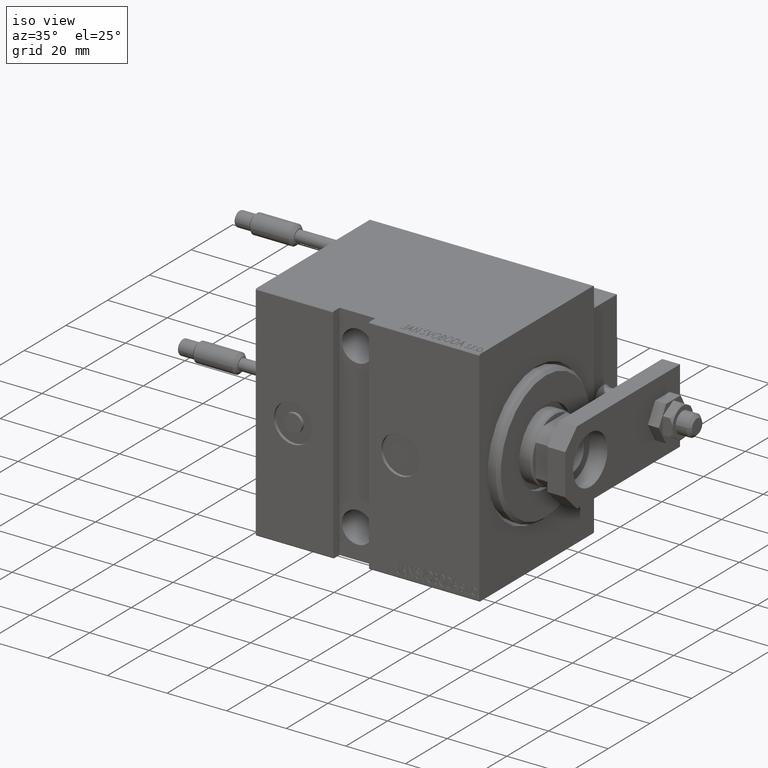
[diagram: clean part render]
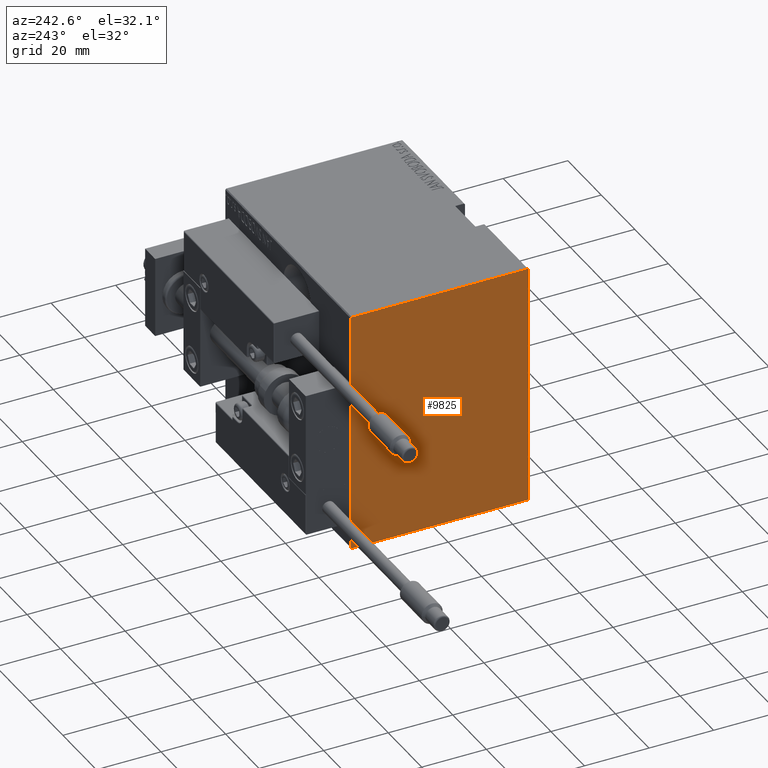
[diagram: tour spotlight — one face highlighted and labeled with its STEP entity id]
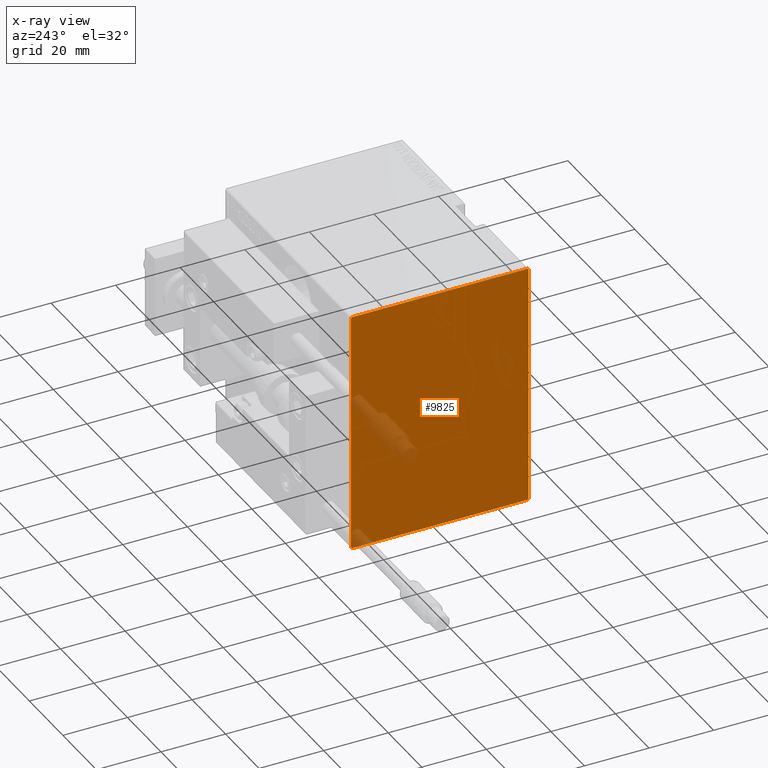
[diagram: x-ray of the same camera — body ghosted, this tour face saturated]
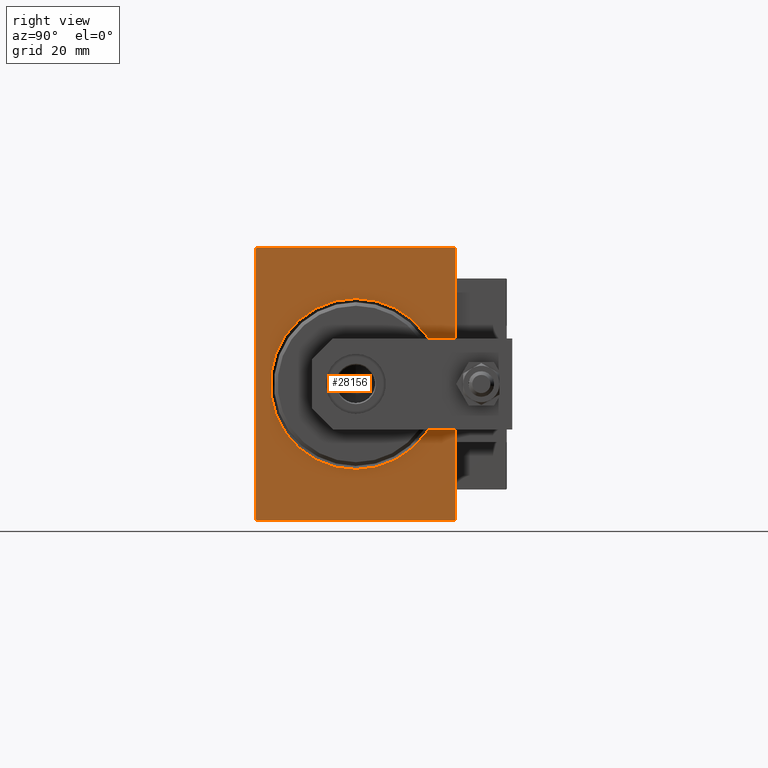
[diagram: tour spotlight — one face highlighted and labeled with its STEP entity id]
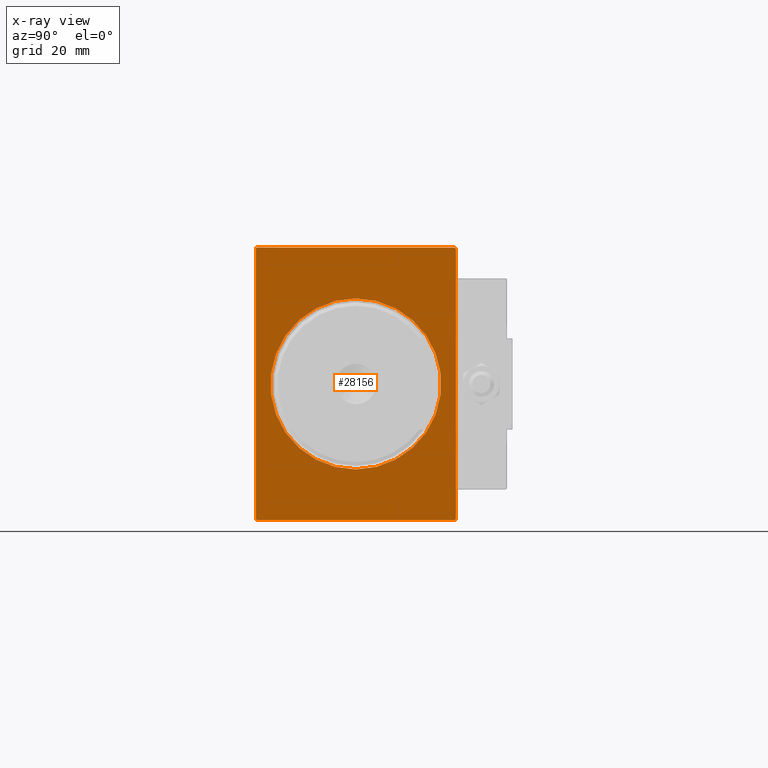
[diagram: x-ray of the same camera — body ghosted, this tour face saturated]
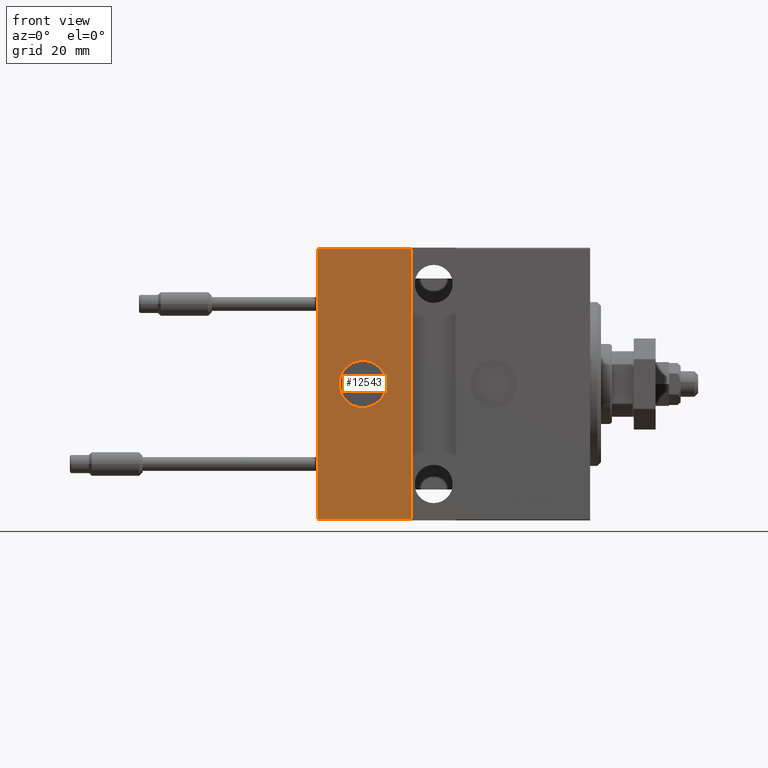
[diagram: tour spotlight — one face highlighted and labeled with its STEP entity id]
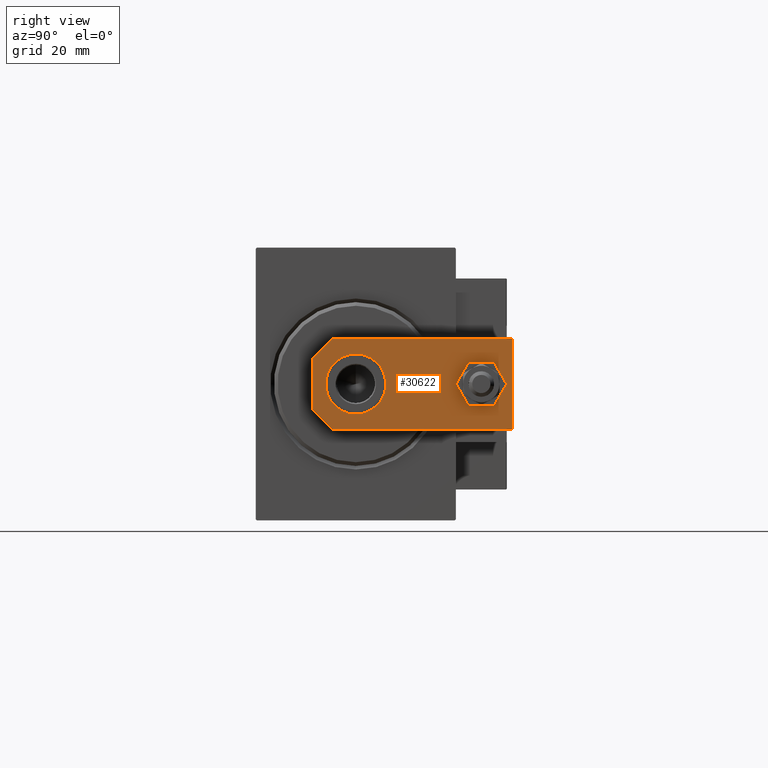
[diagram: tour spotlight — one face highlighted and labeled with its STEP entity id]
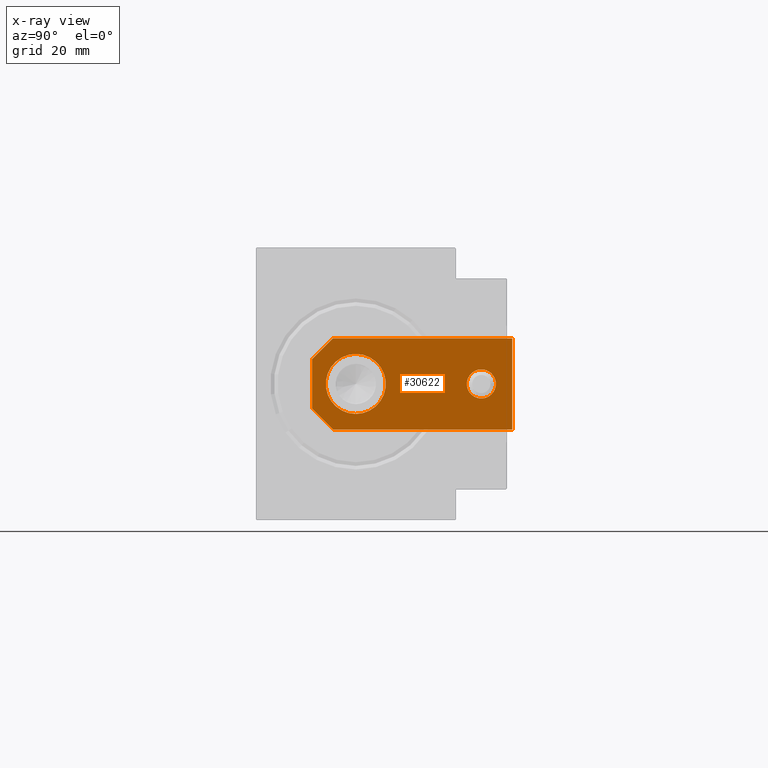
[diagram: x-ray of the same camera — body ghosted, this tour face saturated]
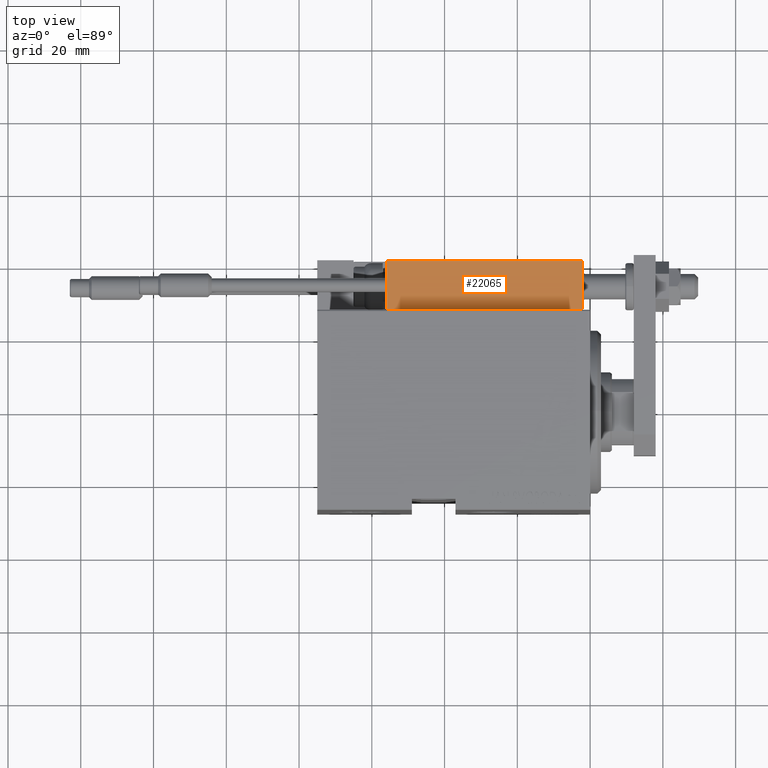
[diagram: tour spotlight — one face highlighted and labeled with its STEP entity id]
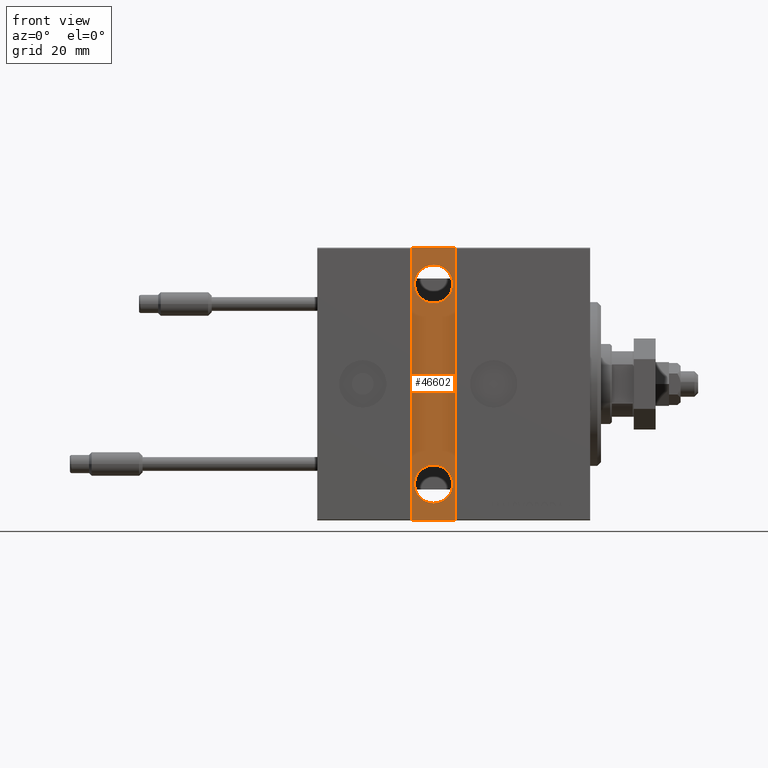
[diagram: tour spotlight — one face highlighted and labeled with its STEP entity id]
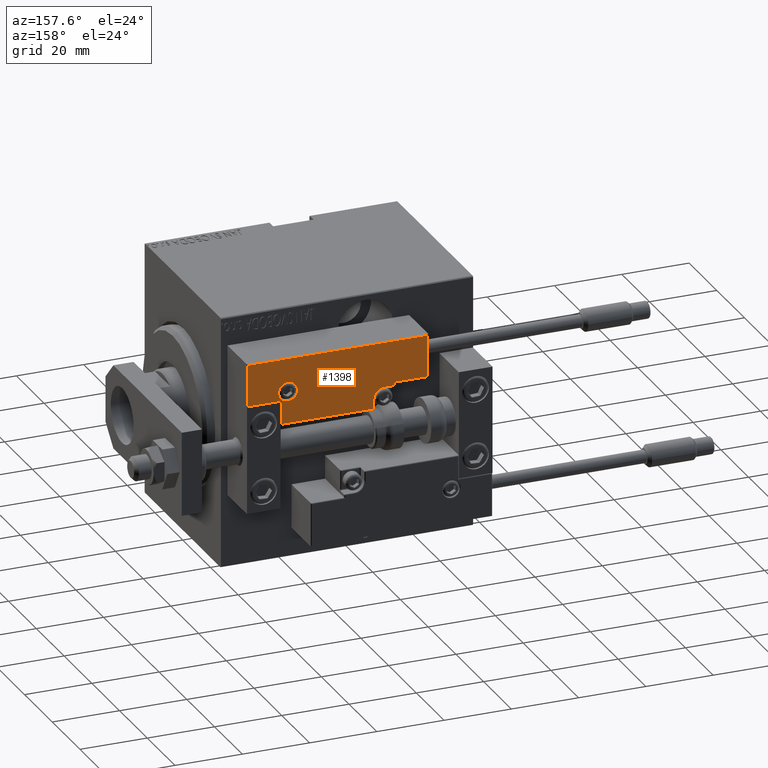
[diagram: tour spotlight — one face highlighted and labeled with its STEP entity id]
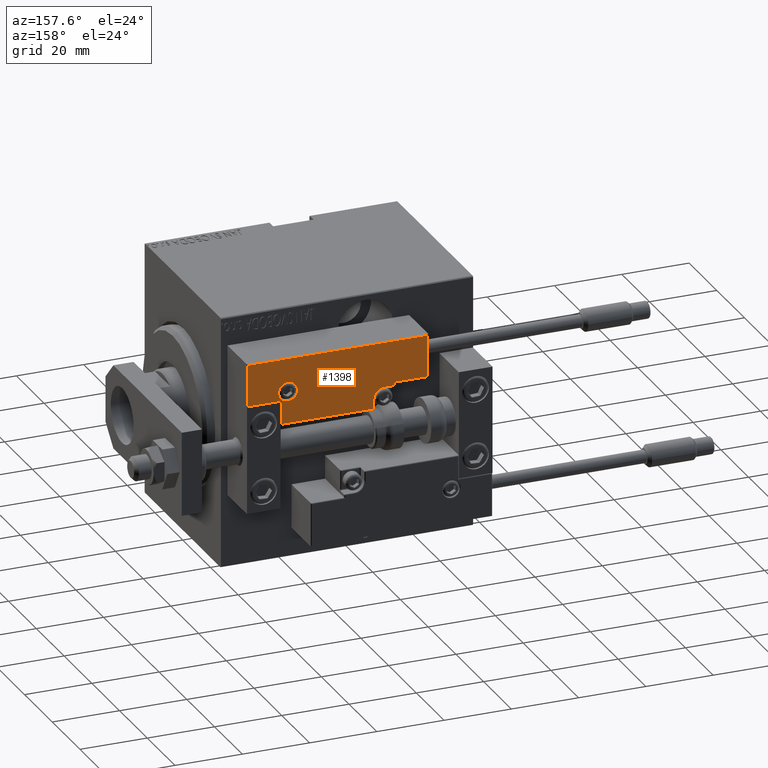
[diagram: tour spotlight — one face highlighted and labeled with its STEP entity id]
A machine part: a face-by-face anatomy tour. The part has 1295 B-rep faces; the first image is the clean iso view, then the 8 largest visible faces are spotlighted one at a time (largest first), each with its STEP entity span.

Face 1 — auxiliary view, entity #9825. An x-ray twin of the same camera follows (body ghosted, this face saturated) — the face is partly hidden behind the body. In plain terms, the highlighted planar face has unit normal (-1, 0, 0).
Definition (entity closure, byte-faithful):
#798 = ORIENTED_EDGE ( 'NONE', *, *, #31545, .T. ) ;
#1475 = ORIENTED_EDGE ( 'NONE', *, *, #32002, .T. ) ;
#1766 = VECTOR ( 'NONE', #25607, 999.9999999999998863 ) ;
#1803 = LINE ( 'NONE', #17159, #38923 ) ;
#2834 = LINE ( 'NONE', #18195, #47397 ) ;
#2896 = VERTEX_POINT ( 'NONE', #4792 ) ;
#2954 = ORIENTED_EDGE ( 'NONE', *, *, #20269, .T. ) ;
#4524 = EDGE_CURVE ( 'NONE', #42376, #49047, #37199, .T. ) ;
#4792 = CARTESIAN_POINT ( 'NONE',  ( 75.00000000000000000, 27.49999999999999645, 37.20000000000000995 ) ) ;
#5287 = VECTOR ( 'NONE', #9804, 1000.000000000000000 ) ;
#6306 = DIRECTION ( 'NONE',  ( -0.000000000000000000, 0.7071067811865474617, -0.7071067811865474617 ) ) ;
#6936 = VERTEX_POINT ( 'NONE', #41821 ) ;
#8076 = VECTOR ( 'NONE', #6306, 1000.000000000000114 ) ;
#8284 = VERTEX_POINT ( 'NONE', #33214 ) ;
#9663 = LINE ( 'NONE', #24993, #12873 ) ;
#9804 = DIRECTION ( 'NONE',  ( -0.000000000000000000, 0.7071067811865434649, 0.7071067811865516806 ) ) ;
#9825 = ADVANCED_FACE ( 'NONE', ( #39562 ), #43090, .T. ) ;
#10652 = DIRECTION ( 'NONE',  ( -0.000000000000000000, -0.7071067811865474617, 0.7071067811865474617 ) ) ;
#12873 = VECTOR ( 'NONE', #10652, 1000.000000000000114 ) ;
#13917 = VECTOR ( 'NONE', #30634, 1000.000000000000000 ) ;
#14312 = CARTESIAN_POINT ( 'NONE',  ( 75.00000000000000000, 27.50000000000000355, -37.19999999999999574 ) ) ;
#14845 = CARTESIAN_POINT ( 'NONE',  ( 75.00000000000000000, -27.20000000000000284, 37.49999999999999289 ) ) ;
#16297 = EDGE_LOOP ( 'NONE', ( #798, #23203, #35749, #23940, #2954, #17174, #1475, #49257 ) ) ;
#17159 = CARTESIAN_POINT ( 'NONE',  ( 75.00000000000000000, -27.50000000000000000, 37.49999999999999289 ) ) ;
#17174 = ORIENTED_EDGE ( 'NONE', *, *, #26650, .T. ) ;
#17659 = DIRECTION ( 'NONE',  ( 0.000000000000000000, 0.000000000000000000, -1.000000000000000000 ) ) ;
#18195 = CARTESIAN_POINT ( 'NONE',  ( 75.00000000000000000, 27.50000000000000355, -37.50000000000000711 ) ) ;
#18256 = CARTESIAN_POINT ( 'NONE',  ( 75.00000000000000000, 27.49999999999999645, 37.50000000000000711 ) ) ;
#18678 = VERTEX_POINT ( 'NONE', #31219 ) ;
#18836 = CARTESIAN_POINT ( 'NONE',  ( 75.00000000000000000, -27.50000000000000000, -37.50000000000000711 ) ) ;
#20269 = EDGE_CURVE ( 'NONE', #6936, #46188, #41140, .T. ) ;
#20607 = EDGE_CURVE ( 'NONE', #49047, #2896, #2834, .T. ) ;
#21378 = EDGE_CURVE ( 'NONE', #2896, #6936, #9663, .T. ) ;
#23203 = ORIENTED_EDGE ( 'NONE', *, *, #4524, .T. ) ;
#23940 = ORIENTED_EDGE ( 'NONE', *, *, #21378, .T. ) ;
#24993 = CARTESIAN_POINT ( 'NONE',  ( 75.00000000000000000, 32.35000000000000142, 32.35000000000000142 ) ) ;
#25607 = DIRECTION ( 'NONE',  ( 0.000000000000000000, -0.7071067811865515695, -0.7071067811865435759 ) ) ;
#26650 = EDGE_CURVE ( 'NONE', #46188, #8284, #33411, .T. ) ;
#26878 = LINE ( 'NONE', #18836, #13917 ) ;
#28365 = CARTESIAN_POINT ( 'NONE',  ( 75.00000000000000000, 27.19999999999999929, -37.50000000000000711 ) ) ;
#30131 = CARTESIAN_POINT ( 'NONE',  ( 75.00000000000000000, -32.34999999999983800, 32.35000000000021458 ) ) ;
#30634 = DIRECTION ( 'NONE',  ( 0.000000000000000000, 1.000000000000000000, 0.000000000000000000 ) ) ;
#31219 = CARTESIAN_POINT ( 'NONE',  ( 75.00000000000000000, -27.19999999999999218, -37.50000000000000711 ) ) ;
#31545 = EDGE_CURVE ( 'NONE', #18678, #42376, #26878, .T. ) ;
#31724 = VERTEX_POINT ( 'NONE', #42966 ) ;
#32002 = EDGE_CURVE ( 'NONE', #8284, #31724, #1803, .T. ) ;
#33214 = CARTESIAN_POINT ( 'NONE',  ( 75.00000000000000000, -27.50000000000000000, 37.19999999999999574 ) ) ;
#33411 = LINE ( 'NONE', #30131, #1766 ) ;
#33528 = DIRECTION ( 'NONE',  ( 0.000000000000000000, -9.251858538542970348E-17, 1.000000000000000000 ) ) ;
#33585 = DIRECTION ( 'NONE',  ( 0.000000000000000000, -1.000000000000000000, -2.523234146875355998E-16 ) ) ;
#35540 = CARTESIAN_POINT ( 'NONE',  ( 75.00000000000000000, 0.000000000000000000, 0.000000000000000000 ) ) ;
#35749 = ORIENTED_EDGE ( 'NONE', *, *, #20607, .T. ) ;
#36019 = DIRECTION ( 'NONE',  ( 0.000000000000000000, 0.000000000000000000, -1.000000000000000000 ) ) ;
#37199 = LINE ( 'NONE', #39985, #5287 ) ;
#37416 = EDGE_CURVE ( 'NONE', #31724, #18678, #48323, .T. ) ;
#38923 = VECTOR ( 'NONE', #17659, 1000.000000000000000 ) ;
#39562 = FACE_OUTER_BOUND ( 'NONE', #16297, .T. ) ;
#39985 = CARTESIAN_POINT ( 'NONE',  ( 75.00000000000000000, 32.35000000000016485, -32.34999999999978826 ) ) ;
#40291 = DIRECTION ( 'NONE',  ( 1.000000000000000000, 0.000000000000000000, 0.000000000000000000 ) ) ;
#41140 = LINE ( 'NONE', #18256, #49010 ) ;
#41545 = AXIS2_PLACEMENT_3D ( 'NONE', #35540, #40291, #36019 ) ;
#41821 = CARTESIAN_POINT ( 'NONE',  ( 75.00000000000000000, 27.20000000000000284, 37.50000000000000711 ) ) ;
#42376 = VERTEX_POINT ( 'NONE', #28365 ) ;
#42966 = CARTESIAN_POINT ( 'NONE',  ( 75.00000000000000000, -27.50000000000000000, -37.19999999999999574 ) ) ;
#43090 = PLANE ( 'NONE',  #41545 ) ;
#44553 = CARTESIAN_POINT ( 'NONE',  ( 75.00000000000000000, -32.34999999999999432, -32.34999999999999432 ) ) ;
#46188 = VERTEX_POINT ( 'NONE', #14845 ) ;
#47397 = VECTOR ( 'NONE', #33528, 1000.000000000000000 ) ;
#48323 = LINE ( 'NONE', #44553, #8076 ) ;
#49010 = VECTOR ( 'NONE', #33585, 1000.000000000000000 ) ;
#49047 = VERTEX_POINT ( 'NONE', #14312 ) ;
#49257 = ORIENTED_EDGE ( 'NONE', *, *, #37416, .T. ) ;

Face 2 — right view, entity #28156. An x-ray twin of the same camera follows (body ghosted, this face saturated) — the face is partly hidden behind the body. In plain terms, the highlighted planar face has unit normal (-1, 0, 0).
Definition (entity closure, byte-faithful):
#363 = VERTEX_POINT ( 'NONE', #38935 ) ;
#963 = EDGE_CURVE ( 'NONE', #5138, #21607, #47588, .T. ) ;
#2798 = DIRECTION ( 'NONE',  ( 0.000000000000000000, -0.7071067811865434649, -0.7071067811865516806 ) ) ;
#2929 = EDGE_LOOP ( 'NONE', ( #27007, #15872 ) ) ;
#3538 = AXIS2_PLACEMENT_3D ( 'NONE', #13463, #13958, #48179 ) ;
#3956 = CARTESIAN_POINT ( 'NONE',  ( 0.000000000000000000, -27.20000000000000284, 37.49999999999999289 ) ) ;
#4442 = CARTESIAN_POINT ( 'NONE',  ( 0.000000000000000000, 27.49999999999999645, 37.20000000000000995 ) ) ;
#4588 = VERTEX_POINT ( 'NONE', #6271 ) ;
#5138 = VERTEX_POINT ( 'NONE', #23964 ) ;
#5610 = CARTESIAN_POINT ( 'NONE',  ( 0.000000000000000000, -27.50000000000000000, 37.49999999999999289 ) ) ;
#6271 = CARTESIAN_POINT ( 'NONE',  ( 0.000000000000000000, 27.50000000000000355, -37.19999999999999574 ) ) ;
#6734 = VECTOR ( 'NONE', #47016, 1000.000000000000000 ) ;
#7939 = VECTOR ( 'NONE', #13160, 1000.000000000000000 ) ;
#8460 = EDGE_CURVE ( 'NONE', #34249, #32592, #41556, .T. ) ;
#9506 = CARTESIAN_POINT ( 'NONE',  ( 0.000000000000000000, -27.50000000000000000, 37.19999999999999574 ) ) ;
#9980 = VECTOR ( 'NONE', #13325, 1000.000000000000000 ) ;
#10204 = CARTESIAN_POINT ( 'NONE',  ( 0.000000000000000000, 27.20000000000000284, 37.50000000000000711 ) ) ;
#12037 = EDGE_CURVE ( 'NONE', #4588, #363, #37268, .T. ) ;
#12397 = FACE_OUTER_BOUND ( 'NONE', #45660, .T. ) ;
#12776 = LINE ( 'NONE', #27384, #6734 ) ;
#13160 = DIRECTION ( 'NONE',  ( 0.000000000000000000, 0.000000000000000000, -1.000000000000000000 ) ) ;
#13207 = VERTEX_POINT ( 'NONE', #49806 ) ;
#13325 = DIRECTION ( 'NONE',  ( 0.000000000000000000, -1.000000000000000000, -2.523234146875355998E-16 ) ) ;
#13463 = CARTESIAN_POINT ( 'NONE',  ( 0.000000000000000000, 0.000000000000000000, 0.000000000000000000 ) ) ;
#13542 = ORIENTED_EDGE ( 'NONE', *, *, #49050, .F. ) ;
#13755 = EDGE_CURVE ( 'NONE', #13207, #25594, #37605, .T. ) ;
#13907 = ORIENTED_EDGE ( 'NONE', *, *, #14047, .F. ) ;
#13958 = DIRECTION ( 'NONE',  ( 1.000000000000000000, 0.000000000000000000, 0.000000000000000000 ) ) ;
#14047 = EDGE_CURVE ( 'NONE', #18003, #21607, #39831, .T. ) ;
#14846 = DIRECTION ( 'NONE',  ( 0.000000000000000000, 0.000000000000000000, -1.000000000000000000 ) ) ;
#15872 = ORIENTED_EDGE ( 'NONE', *, *, #46476, .T. ) ;
#16732 = DIRECTION ( 'NONE',  ( -0.000000000000000000, 0.7071067811865515695, 0.7071067811865435759 ) ) ;
#16907 = VECTOR ( 'NONE', #21152, 1000.000000000000114 ) ;
#17585 = LINE ( 'NONE', #31918, #39488 ) ;
#18003 = VERTEX_POINT ( 'NONE', #9506 ) ;
#18623 = CARTESIAN_POINT ( 'NONE',  ( 0.000000000000000000, 0.000000000000000000, 0.000000000000000000 ) ) ;
#19521 = AXIS2_PLACEMENT_3D ( 'NONE', #43332, #24932, #27744 ) ;
#20683 = PLANE ( 'NONE',  #19521 ) ;
#20911 = FACE_BOUND ( 'NONE', #2929, .T. ) ;
#21139 = ORIENTED_EDGE ( 'NONE', *, *, #23633, .T. ) ;
#21152 = DIRECTION ( 'NONE',  ( -0.000000000000000000, -0.7071067811865474617, 0.7071067811865474617 ) ) ;
#21362 = LINE ( 'NONE', #24887, #9980 ) ;
#21607 = VERTEX_POINT ( 'NONE', #31926 ) ;
#22690 = ORIENTED_EDGE ( 'NONE', *, *, #963, .T. ) ;
#23633 = EDGE_CURVE ( 'NONE', #18003, #25485, #17585, .T. ) ;
#23964 = CARTESIAN_POINT ( 'NONE',  ( 0.000000000000000000, -27.19999999999999218, -37.50000000000000711 ) ) ;
#23971 = VECTOR ( 'NONE', #45408, 1000.000000000000114 ) ;
#24887 = CARTESIAN_POINT ( 'NONE',  ( 0.000000000000000000, 27.49999999999999645, 37.50000000000000711 ) ) ;
#24932 = DIRECTION ( 'NONE',  ( 1.000000000000000000, 0.000000000000000000, 0.000000000000000000 ) ) ;
#25485 = VERTEX_POINT ( 'NONE', #3956 ) ;
#25594 = VERTEX_POINT ( 'NONE', #4442 ) ;
#26194 = CARTESIAN_POINT ( 'NONE',  ( 0.000000000000000000, 27.50000000000000355, -37.19999999999999574 ) ) ;
#27007 = ORIENTED_EDGE ( 'NONE', *, *, #8460, .T. ) ;
#27384 = CARTESIAN_POINT ( 'NONE',  ( 0.000000000000000000, 27.50000000000000355, -37.50000000000000711 ) ) ;
#27744 = DIRECTION ( 'NONE',  ( 0.000000000000000000, 0.000000000000000000, -1.000000000000000000 ) ) ;
#28156 = ADVANCED_FACE ( 'NONE', ( #20911, #12397 ), #20683, .F. ) ;
#28248 = CARTESIAN_POINT ( 'NONE',  ( 0.000000000000000000, 0.000000000000000000, 23.50000000000000355 ) ) ;
#28457 = CARTESIAN_POINT ( 'NONE',  ( 0.000000000000000000, -27.19999999999999218, -37.50000000000000711 ) ) ;
#29361 = ORIENTED_EDGE ( 'NONE', *, *, #13755, .T. ) ;
#31215 = CARTESIAN_POINT ( 'NONE',  ( 0.000000000000000000, -27.50000000000000000, -37.50000000000000711 ) ) ;
#31678 = CIRCLE ( 'NONE', #3538, 23.50000000000000355 ) ;
#31918 = CARTESIAN_POINT ( 'NONE',  ( 0.000000000000000000, -27.50000000000000000, 37.19999999999999574 ) ) ;
#31926 = CARTESIAN_POINT ( 'NONE',  ( 0.000000000000000000, -27.50000000000000000, -37.19999999999999574 ) ) ;
#32592 = VERTEX_POINT ( 'NONE', #46014 ) ;
#34249 = VERTEX_POINT ( 'NONE', #28248 ) ;
#34472 = EDGE_CURVE ( 'NONE', #4588, #25594, #12776, .T. ) ;
#35045 = EDGE_CURVE ( 'NONE', #5138, #363, #35250, .T. ) ;
#35250 = LINE ( 'NONE', #31215, #35700 ) ;
#35700 = VECTOR ( 'NONE', #38033, 1000.000000000000000 ) ;
#36509 = ORIENTED_EDGE ( 'NONE', *, *, #35045, .F. ) ;
#37268 = LINE ( 'NONE', #26194, #44810 ) ;
#37518 = ORIENTED_EDGE ( 'NONE', *, *, #12037, .T. ) ;
#37605 = LINE ( 'NONE', #10204, #23971 ) ;
#38033 = DIRECTION ( 'NONE',  ( 0.000000000000000000, 1.000000000000000000, 0.000000000000000000 ) ) ;
#38935 = CARTESIAN_POINT ( 'NONE',  ( 0.000000000000000000, 27.19999999999999929, -37.50000000000000711 ) ) ;
#39488 = VECTOR ( 'NONE', #16732, 999.9999999999998863 ) ;
#39831 = LINE ( 'NONE', #5610, #7939 ) ;
#41556 = CIRCLE ( 'NONE', #46429, 23.50000000000000355 ) ;
#42270 = DIRECTION ( 'NONE',  ( 1.000000000000000000, 0.000000000000000000, 0.000000000000000000 ) ) ;
#43332 = CARTESIAN_POINT ( 'NONE',  ( 0.000000000000000000, 0.000000000000000000, 0.000000000000000000 ) ) ;
#44810 = VECTOR ( 'NONE', #2798, 1000.000000000000000 ) ;
#45408 = DIRECTION ( 'NONE',  ( -0.000000000000000000, 0.7071067811865474617, -0.7071067811865474617 ) ) ;
#45660 = EDGE_LOOP ( 'NONE', ( #13542, #29361, #47019, #37518, #36509, #22690, #13907, #21139 ) ) ;
#46014 = CARTESIAN_POINT ( 'NONE',  ( 0.000000000000000000, 2.877919977996280715E-15, -23.50000000000000355 ) ) ;
#46429 = AXIS2_PLACEMENT_3D ( 'NONE', #18623, #42270, #14846 ) ;
#46476 = EDGE_CURVE ( 'NONE', #32592, #34249, #31678, .T. ) ;
#47016 = DIRECTION ( 'NONE',  ( 0.000000000000000000, -9.251858538542970348E-17, 1.000000000000000000 ) ) ;
#47019 = ORIENTED_EDGE ( 'NONE', *, *, #34472, .F. ) ;
#47588 = LINE ( 'NONE', #28457, #16907 ) ;
#48179 = DIRECTION ( 'NONE',  ( 0.000000000000000000, 0.000000000000000000, -1.000000000000000000 ) ) ;
#49050 = EDGE_CURVE ( 'NONE', #13207, #25485, #21362, .T. ) ;
#49806 = CARTESIAN_POINT ( 'NONE',  ( 0.000000000000000000, 27.20000000000000284, 37.50000000000000711 ) ) ;

Face 3 — front view, entity #12543. In plain terms, the highlighted planar face has unit normal (-0, 1, -0).
Definition (entity closure, byte-faithful):
#46 = CARTESIAN_POINT ( 'NONE',  ( 48.99999999999999289, 27.50000000000000000, -37.50000000000000711 ) ) ;
#263 = CARTESIAN_POINT ( 'NONE',  ( 49.00000000000000000, 27.50000000000000000, 37.20000000000000995 ) ) ;
#1019 = CARTESIAN_POINT ( 'NONE',  ( 48.99999999999999289, 27.50000000000000000, -37.19999999999999574 ) ) ;
#1224 = CARTESIAN_POINT ( 'NONE',  ( 62.49999999999999289, 27.50000000000000000, 2.544261098099316809E-15 ) ) ;
#2199 = LINE ( 'NONE', #32379, #3108 ) ;
#2834 = LINE ( 'NONE', #18195, #47397 ) ;
#2896 = VERTEX_POINT ( 'NONE', #4792 ) ;
#3108 = VECTOR ( 'NONE', #5725, 1000.000000000000000 ) ;
#3138 = EDGE_LOOP ( 'NONE', ( #17954, #4603, #22892, #20597 ) ) ;
#3950 = CARTESIAN_POINT ( 'NONE',  ( 62.49999999999999289, 27.50000000000000000, 6.499999999999997335 ) ) ;
#3958 = CIRCLE ( 'NONE', #25615, 6.499999999999994671 ) ;
#4325 = LINE ( 'NONE', #46, #12267 ) ;
#4603 = ORIENTED_EDGE ( 'NONE', *, *, #18045, .T. ) ;
#4792 = CARTESIAN_POINT ( 'NONE',  ( 75.00000000000000000, 27.49999999999999645, 37.20000000000000995 ) ) ;
#5725 = DIRECTION ( 'NONE',  ( -1.000000000000000000, 0.000000000000000000, 0.000000000000000000 ) ) ;
#11337 = ORIENTED_EDGE ( 'NONE', *, *, #37688, .F. ) ;
#11464 = VERTEX_POINT ( 'NONE', #3950 ) ;
#12267 = VECTOR ( 'NONE', #30980, 1000.000000000000000 ) ;
#12373 = LINE ( 'NONE', #27726, #47753 ) ;
#12543 = ADVANCED_FACE ( 'NONE', ( #17045, #13270 ), #24581, .F. ) ;
#13270 = FACE_OUTER_BOUND ( 'NONE', #3138, .T. ) ;
#14312 = CARTESIAN_POINT ( 'NONE',  ( 75.00000000000000000, 27.50000000000000355, -37.19999999999999574 ) ) ;
#17045 = FACE_BOUND ( 'NONE', #27907, .T. ) ;
#17954 = ORIENTED_EDGE ( 'NONE', *, *, #20607, .F. ) ;
#18045 = EDGE_CURVE ( 'NONE', #49047, #31119, #2199, .T. ) ;
#18082 = CARTESIAN_POINT ( 'NONE',  ( 62.49999999999999289, 27.50000000000000000, -6.499999999999992006 ) ) ;
#18195 = CARTESIAN_POINT ( 'NONE',  ( 75.00000000000000000, 27.50000000000000355, -37.50000000000000711 ) ) ;
#18525 = CIRCLE ( 'NONE', #20143, 6.499999999999994671 ) ;
#18808 = EDGE_CURVE ( 'NONE', #11464, #27749, #3958, .T. ) ;
#19357 = DIRECTION ( 'NONE',  ( 0.000000000000000000, 0.000000000000000000, 1.000000000000000000 ) ) ;
#20143 = AXIS2_PLACEMENT_3D ( 'NONE', #33840, #34350, #41398 ) ;
#20597 = ORIENTED_EDGE ( 'NONE', *, *, #46065, .T. ) ;
#20607 = EDGE_CURVE ( 'NONE', #49047, #2896, #2834, .T. ) ;
#22892 = ORIENTED_EDGE ( 'NONE', *, *, #43178, .F. ) ;
#24581 = PLANE ( 'NONE',  #32778 ) ;
#24833 = DIRECTION ( 'NONE',  ( 0.000000000000000000, 9.251858538542970348E-17, -1.000000000000000000 ) ) ;
#25084 = CARTESIAN_POINT ( 'NONE',  ( 75.00000000000000000, 27.50000000000000355, -37.50000000000000711 ) ) ;
#25615 = AXIS2_PLACEMENT_3D ( 'NONE', #1224, #31653, #19357 ) ;
#27726 = CARTESIAN_POINT ( 'NONE',  ( 75.00000000000000000, 27.49999999999999645, 37.20000000000000995 ) ) ;
#27749 = VERTEX_POINT ( 'NONE', #18082 ) ;
#27907 = EDGE_LOOP ( 'NONE', ( #34000, #11337 ) ) ;
#30263 = VERTEX_POINT ( 'NONE', #263 ) ;
#30980 = DIRECTION ( 'NONE',  ( -9.251858538542978977E-17, -0.000000000000000000, -1.000000000000000000 ) ) ;
#31119 = VERTEX_POINT ( 'NONE', #1019 ) ;
#31653 = DIRECTION ( 'NONE',  ( 6.162975822039154730E-33, 1.000000000000000000, 8.767205616560546857E-17 ) ) ;
#32379 = CARTESIAN_POINT ( 'NONE',  ( 75.00000000000000000, 27.50000000000000355, -37.19999999999999574 ) ) ;
#32778 = AXIS2_PLACEMENT_3D ( 'NONE', #25084, #39450, #24833 ) ;
#33528 = DIRECTION ( 'NONE',  ( 0.000000000000000000, -9.251858538542970348E-17, 1.000000000000000000 ) ) ;
#33840 = CARTESIAN_POINT ( 'NONE',  ( 62.49999999999999289, 27.50000000000000000, 2.544261098099316809E-15 ) ) ;
#34000 = ORIENTED_EDGE ( 'NONE', *, *, #18808, .F. ) ;
#34350 = DIRECTION ( 'NONE',  ( 6.162975822039154730E-33, 1.000000000000000000, 8.767205616560546857E-17 ) ) ;
#37688 = EDGE_CURVE ( 'NONE', #27749, #11464, #18525, .T. ) ;
#38790 = DIRECTION ( 'NONE',  ( 1.000000000000000000, 0.000000000000000000, 0.000000000000000000 ) ) ;
#39450 = DIRECTION ( 'NONE',  ( 0.000000000000000000, -1.000000000000000000, -9.251858538542970348E-17 ) ) ;
#41398 = DIRECTION ( 'NONE',  ( 0.000000000000000000, 0.000000000000000000, 1.000000000000000000 ) ) ;
#43178 = EDGE_CURVE ( 'NONE', #30263, #31119, #4325, .T. ) ;
#46065 = EDGE_CURVE ( 'NONE', #30263, #2896, #12373, .T. ) ;
#47397 = VECTOR ( 'NONE', #33528, 1000.000000000000000 ) ;
#47753 = VECTOR ( 'NONE', #38790, 1000.000000000000000 ) ;
#49047 = VERTEX_POINT ( 'NONE', #14312 ) ;

Face 4 — right view, entity #30622. An x-ray twin of the same camera follows (body ghosted, this face saturated) — the face is partly hidden behind the body. In plain terms, the highlighted planar face has unit normal (1, 0, -0).
Definition (entity closure, byte-faithful):
#547 = EDGE_LOOP ( 'NONE', ( #43555, #17962 ) ) ;
#645 = CARTESIAN_POINT ( 'NONE',  ( -12.50000000000000355, 5.660000000000005471, 6.000000000000000000 ) ) ;
#1267 = ORIENTED_EDGE ( 'NONE', *, *, #32330, .T. ) ;
#2730 = EDGE_CURVE ( 'NONE', #27560, #39245, #38992, .T. ) ;
#4342 = CARTESIAN_POINT ( 'NONE',  ( -9.629649721936179265E-32, 11.99999999999999645, 6.000000000000000000 ) ) ;
#4589 = DIRECTION ( 'NONE',  ( 0.000000000000000000, 0.000000000000000000, 1.000000000000000000 ) ) ;
#4839 = VECTOR ( 'NONE', #14081, 1000.000000000000000 ) ;
#7875 = ORIENTED_EDGE ( 'NONE', *, *, #42539, .T. ) ;
#8930 = VECTOR ( 'NONE', #47669, 1000.000000000000000 ) ;
#8966 = CIRCLE ( 'NONE', #35465, 4.000000000000000888 ) ;
#9151 = ORIENTED_EDGE ( 'NONE', *, *, #23166, .T. ) ;
#9680 = CARTESIAN_POINT ( 'NONE',  ( 12.50000000000000355, 4.814824860968089633E-32, 6.000000000000000000 ) ) ;
#9855 = CARTESIAN_POINT ( 'NONE',  ( 8.250000000000000000, 11.99999999999999822, 6.000000000000000000 ) ) ;
#10548 = DIRECTION ( 'NONE',  ( 0.7071067811865483499, 0.7071067811865465735, -0.000000000000000000 ) ) ;
#11198 = CARTESIAN_POINT ( 'NONE',  ( 12.50000000000000355, 5.659999999999991260, 6.000000000000000000 ) ) ;
#12587 = LINE ( 'NONE', #48045, #38055 ) ;
#13868 = VERTEX_POINT ( 'NONE', #35077 ) ;
#14081 = DIRECTION ( 'NONE',  ( 0.7071067811865467956, -0.7071067811865483499, 0.000000000000000000 ) ) ;
#14771 = CARTESIAN_POINT ( 'NONE',  ( -12.49999999999999822, 55.00000000000000000, 6.000000000000000000 ) ) ;
#15866 = CARTESIAN_POINT ( 'NONE',  ( -8.250000000000000000, 11.99999999999999645, 6.000000000000000000 ) ) ;
#16168 = AXIS2_PLACEMENT_3D ( 'NONE', #4342, #4589, #31485 ) ;
#16414 = VERTEX_POINT ( 'NONE', #645 ) ;
#16575 = ORIENTED_EDGE ( 'NONE', *, *, #17073, .T. ) ;
#17073 = EDGE_CURVE ( 'NONE', #41840, #37000, #19105, .T. ) ;
#17094 = DIRECTION ( 'NONE',  ( -1.000000000000000000, 0.000000000000000000, 0.000000000000000000 ) ) ;
#17661 = DIRECTION ( 'NONE',  ( 0.000000000000000000, 0.000000000000000000, 1.000000000000000000 ) ) ;
#17884 = EDGE_CURVE ( 'NONE', #16414, #41703, #19112, .T. ) ;
#17962 = ORIENTED_EDGE ( 'NONE', *, *, #21322, .F. ) ;
#19105 = LINE ( 'NONE', #23100, #40961 ) ;
#19112 = LINE ( 'NONE', #49041, #4839 ) ;
#19264 = CARTESIAN_POINT ( 'NONE',  ( -4.000000000000000888, 46.50000000000000000, 6.000000000000000000 ) ) ;
#20006 = CARTESIAN_POINT ( 'NONE',  ( -1.432611055310774642E-16, 46.50000000000000000, 6.000000000000000000 ) ) ;
#20061 = CARTESIAN_POINT ( 'NONE',  ( 12.50000000000000000, 55.00000000000000000, 6.000000000000000000 ) ) ;
#20316 = VECTOR ( 'NONE', #26348, 1000.000000000000000 ) ;
#20871 = EDGE_LOOP ( 'NONE', ( #21459, #29747 ) ) ;
#21322 = EDGE_CURVE ( 'NONE', #13868, #28932, #28954, .T. ) ;
#21459 = ORIENTED_EDGE ( 'NONE', *, *, #2730, .F. ) ;
#22307 = LINE ( 'NONE', #14771, #20316 ) ;
#23100 = CARTESIAN_POINT ( 'NONE',  ( 3.419999999999990603, -3.419999999999999485, 6.000000000000000000 ) ) ;
#23113 = LINE ( 'NONE', #26141, #37985 ) ;
#23166 = EDGE_CURVE ( 'NONE', #37000, #26772, #48172, .T. ) ;
#23954 = EDGE_CURVE ( 'NONE', #28932, #13868, #8966, .T. ) ;
#24573 = FACE_BOUND ( 'NONE', #20871, .T. ) ;
#24824 = CARTESIAN_POINT ( 'NONE',  ( 0.000000000000000000, 0.000000000000000000, 6.000000000000000000 ) ) ;
#26141 = CARTESIAN_POINT ( 'NONE',  ( -12.50000000000000355, 4.814824860968089633E-32, 6.000000000000000000 ) ) ;
#26348 = DIRECTION ( 'NONE',  ( -9.462128050782584375E-17, -1.000000000000000000, 0.000000000000000000 ) ) ;
#26772 = VERTEX_POINT ( 'NONE', #20061 ) ;
#27560 = VERTEX_POINT ( 'NONE', #15866 ) ;
#28446 = AXIS2_PLACEMENT_3D ( 'NONE', #24824, #47984, #39683 ) ;
#28932 = VERTEX_POINT ( 'NONE', #19264 ) ;
#28954 = CIRCLE ( 'NONE', #38598, 4.000000000000000888 ) ;
#29747 = ORIENTED_EDGE ( 'NONE', *, *, #38167, .F. ) ;
#30622 = ADVANCED_FACE ( 'NONE', ( #40428, #31875, #24573 ), #44206, .T. ) ;
#30767 = DIRECTION ( 'NONE',  ( 0.000000000000000000, 0.000000000000000000, 1.000000000000000000 ) ) ;
#31485 = DIRECTION ( 'NONE',  ( 1.000000000000000000, 0.000000000000000000, 0.000000000000000000 ) ) ;
#31875 = FACE_OUTER_BOUND ( 'NONE', #47390, .T. ) ;
#32330 = EDGE_CURVE ( 'NONE', #26772, #44912, #12587, .T. ) ;
#32538 = AXIS2_PLACEMENT_3D ( 'NONE', #40804, #17661, #36530 ) ;
#33894 = ORIENTED_EDGE ( 'NONE', *, *, #42107, .T. ) ;
#34557 = CARTESIAN_POINT ( 'NONE',  ( -1.432611055310774642E-16, 46.50000000000000000, 6.000000000000000000 ) ) ;
#35077 = CARTESIAN_POINT ( 'NONE',  ( 4.000000000000000888, 46.50000000000000000, 6.000000000000000000 ) ) ;
#35342 = DIRECTION ( 'NONE',  ( 0.000000000000000000, 0.000000000000000000, 1.000000000000000000 ) ) ;
#35465 = AXIS2_PLACEMENT_3D ( 'NONE', #34557, #30767, #46140 ) ;
#35586 = DIRECTION ( 'NONE',  ( 1.000000000000000000, 0.000000000000000000, 0.000000000000000000 ) ) ;
#36530 = DIRECTION ( 'NONE',  ( 1.000000000000000000, 0.000000000000000000, 0.000000000000000000 ) ) ;
#37000 = VERTEX_POINT ( 'NONE', #11198 ) ;
#37101 = ORIENTED_EDGE ( 'NONE', *, *, #17884, .T. ) ;
#37985 = VECTOR ( 'NONE', #41498, 1000.000000000000000 ) ;
#38055 = VECTOR ( 'NONE', #17094, 1000.000000000000000 ) ;
#38167 = EDGE_CURVE ( 'NONE', #39245, #27560, #49075, .T. ) ;
#38598 = AXIS2_PLACEMENT_3D ( 'NONE', #20006, #35342, #35586 ) ;
#38992 = CIRCLE ( 'NONE', #32538, 8.250000000000000000 ) ;
#39245 = VERTEX_POINT ( 'NONE', #9855 ) ;
#39393 = CARTESIAN_POINT ( 'NONE',  ( -6.840000000000012292, 4.814824860968089633E-32, 6.000000000000000000 ) ) ;
#39683 = DIRECTION ( 'NONE',  ( 1.000000000000000000, 0.000000000000000000, 0.000000000000000000 ) ) ;
#40428 = FACE_BOUND ( 'NONE', #547, .T. ) ;
#40804 = CARTESIAN_POINT ( 'NONE',  ( -9.629649721936179265E-32, 11.99999999999999645, 6.000000000000000000 ) ) ;
#40961 = VECTOR ( 'NONE', #10548, 1000.000000000000114 ) ;
#41498 = DIRECTION ( 'NONE',  ( 1.000000000000000000, 0.000000000000000000, 0.000000000000000000 ) ) ;
#41703 = VERTEX_POINT ( 'NONE', #39393 ) ;
#41840 = VERTEX_POINT ( 'NONE', #45901 ) ;
#42107 = EDGE_CURVE ( 'NONE', #41703, #41840, #23113, .T. ) ;
#42539 = EDGE_CURVE ( 'NONE', #44912, #16414, #22307, .T. ) ;
#43555 = ORIENTED_EDGE ( 'NONE', *, *, #23954, .F. ) ;
#44206 = PLANE ( 'NONE',  #28446 ) ;
#44912 = VERTEX_POINT ( 'NONE', #45907 ) ;
#45901 = CARTESIAN_POINT ( 'NONE',  ( 6.839999999999998970, 4.814824860968089633E-32, 6.000000000000000000 ) ) ;
#45907 = CARTESIAN_POINT ( 'NONE',  ( -12.49999999999999822, 55.00000000000000000, 6.000000000000000000 ) ) ;
#46140 = DIRECTION ( 'NONE',  ( 1.000000000000000000, 0.000000000000000000, 0.000000000000000000 ) ) ;
#47390 = EDGE_LOOP ( 'NONE', ( #7875, #37101, #33894, #16575, #9151, #1267 ) ) ;
#47669 = DIRECTION ( 'NONE',  ( -6.308085367188389994E-17, 1.000000000000000000, 0.000000000000000000 ) ) ;
#47984 = DIRECTION ( 'NONE',  ( -0.000000000000000000, 0.000000000000000000, 1.000000000000000000 ) ) ;
#48045 = CARTESIAN_POINT ( 'NONE',  ( 12.50000000000000000, 55.00000000000000000, 6.000000000000000000 ) ) ;
#48172 = LINE ( 'NONE', #9680, #8930 ) ;
#49041 = CARTESIAN_POINT ( 'NONE',  ( -3.420000000000013696, -3.420000000000006146, 6.000000000000000000 ) ) ;
#49075 = CIRCLE ( 'NONE', #16168, 8.250000000000000000 ) ;

Face 5 — top view, entity #22065. In plain terms, the highlighted planar face has unit normal (-0, -0, -1).
Definition (entity closure, byte-faithful):
#136 = DIRECTION ( 'NONE',  ( -6.424901762877063495E-17, -1.000000000000000000, 0.000000000000000000 ) ) ;
#814 = VECTOR ( 'NONE', #38190, 1000.000000000000000 ) ;
#849 = AXIS2_PLACEMENT_3D ( 'NONE', #19512, #136, #11221 ) ;
#1461 = VECTOR ( 'NONE', #3197, 1000.000000000000000 ) ;
#2803 = LINE ( 'NONE', #33500, #12200 ) ;
#3197 = DIRECTION ( 'NONE',  ( -1.000000000000000000, 6.424901762877062263E-17, 0.000000000000000000 ) ) ;
#3980 = CARTESIAN_POINT ( 'NONE',  ( 27.00000000000006395, 20.00000000000001776, 14.00000000000000000 ) ) ;
#4417 = PLANE ( 'NONE',  #849 ) ;
#5011 = EDGE_LOOP ( 'NONE', ( #13096, #9640, #32415, #32382 ) ) ;
#7506 = LINE ( 'NONE', #3980, #814 ) ;
#8677 = CARTESIAN_POINT ( 'NONE',  ( 27.00000000000006395, 20.00000000000001776, 0.000000000000000000 ) ) ;
#9640 = ORIENTED_EDGE ( 'NONE', *, *, #24851, .T. ) ;
#11221 = DIRECTION ( 'NONE',  ( 1.000000000000000000, -6.424901762877063495E-17, 0.000000000000000000 ) ) ;
#12200 = VECTOR ( 'NONE', #14378, 1000.000000000000000 ) ;
#13096 = ORIENTED_EDGE ( 'NONE', *, *, #16543, .F. ) ;
#13455 = EDGE_CURVE ( 'NONE', #48639, #15101, #29850, .T. ) ;
#13456 = LINE ( 'NONE', #24761, #24072 ) ;
#14058 = CARTESIAN_POINT ( 'NONE',  ( -26.99999999999993605, 20.00000000000002132, 0.000000000000000000 ) ) ;
#14378 = DIRECTION ( 'NONE',  ( 1.000000000000000000, -6.424901762877063495E-17, -0.000000000000000000 ) ) ;
#15101 = VERTEX_POINT ( 'NONE', #14058 ) ;
#16543 = EDGE_CURVE ( 'NONE', #18103, #15101, #13456, .T. ) ;
#18103 = VERTEX_POINT ( 'NONE', #28866 ) ;
#19512 = CARTESIAN_POINT ( 'NONE',  ( 27.00000000000006395, 20.00000000000001776, 14.00000000000000000 ) ) ;
#20822 = EDGE_CURVE ( 'NONE', #35848, #48639, #7506, .T. ) ;
#22065 = ADVANCED_FACE ( 'NONE', ( #49724 ), #4417, .F. ) ;
#24072 = VECTOR ( 'NONE', #24514, 1000.000000000000000 ) ;
#24514 = DIRECTION ( 'NONE',  ( -0.000000000000000000, -0.000000000000000000, -1.000000000000000000 ) ) ;
#24761 = CARTESIAN_POINT ( 'NONE',  ( -26.99999999999993605, 20.00000000000002132, 14.00000000000000000 ) ) ;
#24851 = EDGE_CURVE ( 'NONE', #18103, #35848, #2803, .T. ) ;
#28866 = CARTESIAN_POINT ( 'NONE',  ( -26.99999999999993605, 20.00000000000002132, 13.70000000000000107 ) ) ;
#29850 = LINE ( 'NONE', #45470, #1461 ) ;
#32382 = ORIENTED_EDGE ( 'NONE', *, *, #13455, .T. ) ;
#32415 = ORIENTED_EDGE ( 'NONE', *, *, #20822, .T. ) ;
#33500 = CARTESIAN_POINT ( 'NONE',  ( 27.00000000000006395, 20.00000000000001776, 13.70000000000000107 ) ) ;
#35848 = VERTEX_POINT ( 'NONE', #41124 ) ;
#38190 = DIRECTION ( 'NONE',  ( -0.000000000000000000, -0.000000000000000000, -1.000000000000000000 ) ) ;
#41124 = CARTESIAN_POINT ( 'NONE',  ( 27.00000000000006395, 20.00000000000001776, 13.70000000000000107 ) ) ;
#45470 = CARTESIAN_POINT ( 'NONE',  ( 27.00000000000006395, 20.00000000000001776, 0.000000000000000000 ) ) ;
#48639 = VERTEX_POINT ( 'NONE', #8677 ) ;
#49724 = FACE_OUTER_BOUND ( 'NONE', #5011, .T. ) ;

Face 6 — front view, entity #46602. In plain terms, the highlighted planar face has unit normal (0, 1, 0).
Definition (entity closure, byte-faithful):
#560 = CARTESIAN_POINT ( 'NONE',  ( 48.99999999999999289, 24.50000000000000000, -37.50000000000000711 ) ) ;
#749 = VERTEX_POINT ( 'NONE', #44377 ) ;
#1529 = VERTEX_POINT ( 'NONE', #12208 ) ;
#2820 = DIRECTION ( 'NONE',  ( 0.000000000000000000, -1.000000000000000000, 0.000000000000000000 ) ) ;
#3030 = EDGE_LOOP ( 'NONE', ( #43193, #43074, #20714, #44152 ) ) ;
#3076 = CARTESIAN_POINT ( 'NONE',  ( 43.00000000000001421, 24.50000000000000000, 27.50000000000000000 ) ) ;
#3283 = VERTEX_POINT ( 'NONE', #39003 ) ;
#3776 = VECTOR ( 'NONE', #41791, 1000.000000000000000 ) ;
#5274 = EDGE_CURVE ( 'NONE', #25514, #749, #17356, .T. ) ;
#5493 = CARTESIAN_POINT ( 'NONE',  ( 37.00000000000001421, 24.50000000000000000, 37.49999999999993605 ) ) ;
#5605 = EDGE_CURVE ( 'NONE', #35391, #36491, #45005, .T. ) ;
#5927 = DIRECTION ( 'NONE',  ( 0.000000000000000000, -1.000000000000000000, 0.000000000000000000 ) ) ;
#6580 = DIRECTION ( 'NONE',  ( 0.000000000000000000, -1.000000000000000000, 0.000000000000000000 ) ) ;
#7073 = CARTESIAN_POINT ( 'NONE',  ( 43.00000000000001421, 24.50000000000000000, 22.25000000000000355 ) ) ;
#9932 = DIRECTION ( 'NONE',  ( 0.000000000000000000, 0.000000000000000000, -1.000000000000000000 ) ) ;
#9955 = EDGE_CURVE ( 'NONE', #36491, #1529, #30948, .T. ) ;
#10210 = FACE_BOUND ( 'NONE', #39336, .T. ) ;
#10363 = DIRECTION ( 'NONE',  ( 0.000000000000000000, 0.000000000000000000, -1.000000000000000000 ) ) ;
#10545 = CARTESIAN_POINT ( 'NONE',  ( 37.00000000000000000, 24.50000000000000000, -37.50000000000000711 ) ) ;
#11350 = CARTESIAN_POINT ( 'NONE',  ( 49.00000000000000000, 24.50000000000000000, 37.49999999999993605 ) ) ;
#12208 = CARTESIAN_POINT ( 'NONE',  ( 49.00000000000000000, 24.50000000000000000, 37.49999999999993605 ) ) ;
#13301 = LINE ( 'NONE', #560, #45160 ) ;
#14298 = VERTEX_POINT ( 'NONE', #33212 ) ;
#14824 = CARTESIAN_POINT ( 'NONE',  ( 48.99999999999999289, 24.50000000000000000, -37.50000000000000711 ) ) ;
#15625 = VERTEX_POINT ( 'NONE', #7073 ) ;
#15658 = CIRCLE ( 'NONE', #21265, 5.249999999999997335 ) ;
#16494 = EDGE_CURVE ( 'NONE', #15625, #3283, #20073, .T. ) ;
#17072 = DIRECTION ( 'NONE',  ( -1.000000000000000000, 0.000000000000000000, 0.000000000000000000 ) ) ;
#17356 = CIRCLE ( 'NONE', #44655, 5.249999999999994671 ) ;
#18188 = VECTOR ( 'NONE', #40745, 1000.000000000000000 ) ;
#19057 = CARTESIAN_POINT ( 'NONE',  ( 43.00000000000001421, 24.50000000000000000, -22.25000000000000355 ) ) ;
#19063 = ORIENTED_EDGE ( 'NONE', *, *, #44234, .T. ) ;
#20073 = CIRCLE ( 'NONE', #37734, 5.249999999999997335 ) ;
#20714 = ORIENTED_EDGE ( 'NONE', *, *, #31236, .T. ) ;
#20842 = ORIENTED_EDGE ( 'NONE', *, *, #5274, .T. ) ;
#21265 = AXIS2_PLACEMENT_3D ( 'NONE', #3076, #2820, #34518 ) ;
#21266 = FACE_OUTER_BOUND ( 'NONE', #3030, .T. ) ;
#21942 = AXIS2_PLACEMENT_3D ( 'NONE', #36621, #5927, #44425 ) ;
#24341 = CARTESIAN_POINT ( 'NONE',  ( 37.00000000000000000, 24.50000000000000000, -37.50000000000000711 ) ) ;
#25010 = DIRECTION ( 'NONE',  ( 0.000000000000000000, -1.000000000000000000, 0.000000000000000000 ) ) ;
#25514 = VERTEX_POINT ( 'NONE', #19057 ) ;
#26593 = EDGE_CURVE ( 'NONE', #14298, #35391, #13301, .T. ) ;
#27794 = ORIENTED_EDGE ( 'NONE', *, *, #16494, .T. ) ;
#29065 = PLANE ( 'NONE',  #21942 ) ;
#29203 = CIRCLE ( 'NONE', #41275, 5.249999999999994671 ) ;
#30948 = LINE ( 'NONE', #11350, #3776 ) ;
#31236 = EDGE_CURVE ( 'NONE', #1529, #14298, #37712, .T. ) ;
#33194 = DIRECTION ( 'NONE',  ( -9.251858538542978977E-17, -0.000000000000000000, -1.000000000000000000 ) ) ;
#33212 = CARTESIAN_POINT ( 'NONE',  ( 49.00000000000000000, 24.50000000000000355, -37.50000000000000711 ) ) ;
#34518 = DIRECTION ( 'NONE',  ( 0.000000000000000000, 0.000000000000000000, -1.000000000000000000 ) ) ;
#35391 = VERTEX_POINT ( 'NONE', #24341 ) ;
#36329 = EDGE_CURVE ( 'NONE', #3283, #15625, #15658, .T. ) ;
#36491 = VERTEX_POINT ( 'NONE', #5493 ) ;
#36621 = CARTESIAN_POINT ( 'NONE',  ( 0.000000000000000000, 24.50000000000000000, 0.000000000000000000 ) ) ;
#37712 = LINE ( 'NONE', #14824, #49329 ) ;
#37734 = AXIS2_PLACEMENT_3D ( 'NONE', #39867, #25010, #9932 ) ;
#38588 = DIRECTION ( 'NONE',  ( 0.000000000000000000, -1.000000000000000000, 0.000000000000000000 ) ) ;
#39003 = CARTESIAN_POINT ( 'NONE',  ( 43.00000000000001421, 24.50000000000000000, 32.74999999999999289 ) ) ;
#39336 = EDGE_LOOP ( 'NONE', ( #46994, #27794 ) ) ;
#39867 = CARTESIAN_POINT ( 'NONE',  ( 43.00000000000001421, 24.50000000000000000, 27.50000000000000000 ) ) ;
#40745 = DIRECTION ( 'NONE',  ( 1.850371707708595795E-16, 0.000000000000000000, 1.000000000000000000 ) ) ;
#41275 = AXIS2_PLACEMENT_3D ( 'NONE', #47375, #38588, #46403 ) ;
#41791 = DIRECTION ( 'NONE',  ( 1.000000000000000000, -0.000000000000000000, -0.000000000000000000 ) ) ;
#43074 = ORIENTED_EDGE ( 'NONE', *, *, #9955, .T. ) ;
#43193 = ORIENTED_EDGE ( 'NONE', *, *, #5605, .T. ) ;
#44152 = ORIENTED_EDGE ( 'NONE', *, *, #26593, .T. ) ;
#44234 = EDGE_CURVE ( 'NONE', #749, #25514, #29203, .T. ) ;
#44377 = CARTESIAN_POINT ( 'NONE',  ( 43.00000000000001421, 24.50000000000000000, -32.74999999999999289 ) ) ;
#44425 = DIRECTION ( 'NONE',  ( 0.000000000000000000, -0.000000000000000000, -1.000000000000000000 ) ) ;
#44655 = AXIS2_PLACEMENT_3D ( 'NONE', #44826, #6580, #10363 ) ;
#44826 = CARTESIAN_POINT ( 'NONE',  ( 43.00000000000001421, 24.50000000000000000, -27.50000000000000000 ) ) ;
#45005 = LINE ( 'NONE', #10545, #18188 ) ;
#45160 = VECTOR ( 'NONE', #17072, 1000.000000000000000 ) ;
#45618 = EDGE_LOOP ( 'NONE', ( #20842, #19063 ) ) ;
#46403 = DIRECTION ( 'NONE',  ( 0.000000000000000000, 0.000000000000000000, -1.000000000000000000 ) ) ;
#46602 = ADVANCED_FACE ( 'NONE', ( #10210, #47950, #21266 ), #29065, .F. ) ;
#46994 = ORIENTED_EDGE ( 'NONE', *, *, #36329, .T. ) ;
#47375 = CARTESIAN_POINT ( 'NONE',  ( 43.00000000000001421, 24.50000000000000000, -27.50000000000000000 ) ) ;
#47950 = FACE_BOUND ( 'NONE', #45618, .T. ) ;
#49329 = VECTOR ( 'NONE', #33194, 1000.000000000000000 ) ;

Face 7 — auxiliary view, entity #1398. In plain terms, the highlighted planar face has unit normal (-0, 1, 0).
Definition (entity closure, byte-faithful):
#99 = DIRECTION ( 'NONE',  ( 1.000000000000000000, 5.782411586589357639E-16, -0.000000000000000000 ) ) ;
#505 = ORIENTED_EDGE ( 'NONE', *, *, #43764, .T. ) ;
#766 = DIRECTION ( 'NONE',  ( 0.000000000000000000, -0.000000000000000000, -1.000000000000000000 ) ) ;
#951 = AXIS2_PLACEMENT_3D ( 'NONE', #43524, #766, #4296 ) ;
#1090 = DIRECTION ( 'NONE',  ( 1.000000000000000000, 0.000000000000000000, 0.000000000000000000 ) ) ;
#1312 = CARTESIAN_POINT ( 'NONE',  ( 26.70000000000006324, 20.00000000000001776, 14.00000000000000000 ) ) ;
#1332 = VECTOR ( 'NONE', #11813, 1000.000000000000000 ) ;
#1398 = ADVANCED_FACE ( 'NONE', ( #27062, #22516 ), #15498, .T. ) ;
#1652 = CARTESIAN_POINT ( 'NONE',  ( -16.99999999999999289, 7.300000000000003375, 14.00000000000000000 ) ) ;
#1877 = DIRECTION ( 'NONE',  ( 1.000000000000000000, 0.000000000000000000, 0.000000000000000000 ) ) ;
#2132 = DIRECTION ( 'NONE',  ( 0.000000000000000000, -0.000000000000000000, -1.000000000000000000 ) ) ;
#2231 = VERTEX_POINT ( 'NONE', #21353 ) ;
#2949 = VECTOR ( 'NONE', #99, 1000.000000000000000 ) ;
#3162 = DIRECTION ( 'NONE',  ( -0.000000000000000000, 0.000000000000000000, 1.000000000000000000 ) ) ;
#3497 = CARTESIAN_POINT ( 'NONE',  ( -16.69999999999999218, 0.3000000000000032085, 14.00000000000000000 ) ) ;
#4149 = EDGE_CURVE ( 'NONE', #31727, #7553, #43334, .T. ) ;
#4296 = DIRECTION ( 'NONE',  ( 1.000000000000000000, 0.000000000000000000, 0.000000000000000000 ) ) ;
#5078 = VECTOR ( 'NONE', #38890, 1000.000000000000000 ) ;
#5173 = CARTESIAN_POINT ( 'NONE',  ( 13.99999999999999822, 3.000000000000002665, 14.00000000000000000 ) ) ;
#5845 = CARTESIAN_POINT ( 'NONE',  ( -16.69999999999999218, 7.300000000000003375, 14.00000000000000000 ) ) ;
#6207 = CARTESIAN_POINT ( 'NONE',  ( -11.99999999999994849, 9.800000000000004263, 14.00000000000000000 ) ) ;
#6528 = EDGE_CURVE ( 'NONE', #11525, #22234, #42625, .T. ) ;
#6739 = VECTOR ( 'NONE', #18574, 1000.000000000000000 ) ;
#7257 = EDGE_CURVE ( 'NONE', #7553, #23972, #16581, .T. ) ;
#7553 = VERTEX_POINT ( 'NONE', #49248 ) ;
#7667 = LINE ( 'NONE', #45656, #46935 ) ;
#8473 = CARTESIAN_POINT ( 'NONE',  ( 27.00000000000006395, 7.300000000000007816, 14.00000000000000000 ) ) ;
#8788 = EDGE_CURVE ( 'NONE', #23972, #43053, #30867, .T. ) ;
#10517 = DIRECTION ( 'NONE',  ( -8.006416042969869188E-16, -1.000000000000000000, 0.000000000000000000 ) ) ;
#10738 = ORIENTED_EDGE ( 'NONE', *, *, #49385, .T. ) ;
#11216 = VERTEX_POINT ( 'NONE', #3497 ) ;
#11447 = AXIS2_PLACEMENT_3D ( 'NONE', #37628, #3162, #26058 ) ;
#11525 = VERTEX_POINT ( 'NONE', #28555 ) ;
#11813 = DIRECTION ( 'NONE',  ( -1.000000000000000000, 6.424901762877063495E-17, -0.000000000000000000 ) ) ;
#12375 = AXIS2_PLACEMENT_3D ( 'NONE', #47142, #19980, #1090 ) ;
#14685 = CARTESIAN_POINT ( 'NONE',  ( -26.69999999999993534, 19.70000000000002061, 14.00000000000000000 ) ) ;
#14745 = VECTOR ( 'NONE', #31409, 1000.000000000000000 ) ;
#15498 = PLANE ( 'NONE',  #11447 ) ;
#16291 = ORIENTED_EDGE ( 'NONE', *, *, #19909, .T. ) ;
#16508 = VECTOR ( 'NONE', #16665, 1000.000000000000000 ) ;
#16519 = DIRECTION ( 'NONE',  ( 1.000000000000000000, -1.734723475976796001E-16, 0.000000000000000000 ) ) ;
#16581 = LINE ( 'NONE', #27158, #1332 ) ;
#16665 = DIRECTION ( 'NONE',  ( 0.000000000000000000, 1.000000000000000000, -0.000000000000000000 ) ) ;
#17761 = LINE ( 'NONE', #1652, #14745 ) ;
#18574 = DIRECTION ( 'NONE',  ( -0.000000000000000000, 1.000000000000000000, -0.000000000000000000 ) ) ;
#19909 = EDGE_CURVE ( 'NONE', #44283, #11216, #30125, .T. ) ;
#19980 = DIRECTION ( 'NONE',  ( 0.000000000000000000, -0.000000000000000000, -1.000000000000000000 ) ) ;
#21353 = CARTESIAN_POINT ( 'NONE',  ( 10.69999999999999929, 3.000000000000003109, 14.00000000000000000 ) ) ;
#22234 = VERTEX_POINT ( 'NONE', #35836 ) ;
#22499 = VERTEX_POINT ( 'NONE', #23708 ) ;
#22516 = FACE_OUTER_BOUND ( 'NONE', #42283, .T. ) ;
#23708 = CARTESIAN_POINT ( 'NONE',  ( 10.69999999999999929, 0.3000000000000032085, 14.00000000000000000 ) ) ;
#23972 = VERTEX_POINT ( 'NONE', #14685 ) ;
#24299 = ORIENTED_EDGE ( 'NONE', *, *, #7257, .T. ) ;
#25218 = CIRCLE ( 'NONE', #12375, 2.800000000000000266 ) ;
#25363 = ORIENTED_EDGE ( 'NONE', *, *, #42671, .T. ) ;
#25437 = ORIENTED_EDGE ( 'NONE', *, *, #48161, .T. ) ;
#26058 = DIRECTION ( 'NONE',  ( 1.000000000000000000, 0.000000000000000000, 0.000000000000000000 ) ) ;
#26244 = VECTOR ( 'NONE', #10517, 1000.000000000000000 ) ;
#26414 = CARTESIAN_POINT ( 'NONE',  ( -17.59999999999994813, 9.800000000000004263, 14.00000000000000000 ) ) ;
#27062 = FACE_BOUND ( 'NONE', #43825, .T. ) ;
#27158 = CARTESIAN_POINT ( 'NONE',  ( -26.99999999999993605, 19.70000000000002061, 14.00000000000000000 ) ) ;
#27565 = CARTESIAN_POINT ( 'NONE',  ( 16.69999999999999929, 7.000000000000009770, 14.00000000000000000 ) ) ;
#28555 = CARTESIAN_POINT ( 'NONE',  ( 13.99999999999999822, 6.300000000000001599, 14.00000000000000000 ) ) ;
#29098 = ORIENTED_EDGE ( 'NONE', *, *, #34060, .T. ) ;
#29592 = VERTEX_POINT ( 'NONE', #6207 ) ;
#29625 = CARTESIAN_POINT ( 'NONE',  ( 10.69999999999999929, 3.000000000000003109, 14.00000000000000000 ) ) ;
#29863 = CARTESIAN_POINT ( 'NONE',  ( -16.69999999999999218, 3.252606517456513302E-15, 14.00000000000000000 ) ) ;
#29954 = VECTOR ( 'NONE', #16519, 1000.000000000000000 ) ;
#30125 = LINE ( 'NONE', #29863, #39320 ) ;
#30867 = LINE ( 'NONE', #49766, #26244 ) ;
#31409 = DIRECTION ( 'NONE',  ( 1.000000000000000000, -1.734723475976815230E-16, 0.000000000000000000 ) ) ;
#31727 = VERTEX_POINT ( 'NONE', #39196 ) ;
#31772 = ORIENTED_EDGE ( 'NONE', *, *, #4149, .T. ) ;
#32060 = EDGE_CURVE ( 'NONE', #22234, #47461, #44325, .T. ) ;
#33518 = CARTESIAN_POINT ( 'NONE',  ( -26.69999999999994600, 7.300000000000005151, 14.00000000000000000 ) ) ;
#34060 = EDGE_CURVE ( 'NONE', #11216, #22499, #7667, .T. ) ;
#34253 = EDGE_CURVE ( 'NONE', #29592, #43658, #25218, .T. ) ;
#34572 = CARTESIAN_POINT ( 'NONE',  ( 17.00000000000000000, 6.300000000000003375, 14.00000000000000000 ) ) ;
#35836 = CARTESIAN_POINT ( 'NONE',  ( 16.69999999999999929, 6.300000000000003375, 14.00000000000000000 ) ) ;
#37123 = CIRCLE ( 'NONE', #951, 2.800000000000000266 ) ;
#37628 = CARTESIAN_POINT ( 'NONE',  ( 0.000000000000000000, 0.000000000000000000, 14.00000000000000000 ) ) ;
#37683 = LINE ( 'NONE', #29625, #6739 ) ;
#38594 = DIRECTION ( 'NONE',  ( 1.000000000000000000, -0.000000000000000000, 0.000000000000000000 ) ) ;
#38890 = DIRECTION ( 'NONE',  ( 9.912705577010318647E-16, 1.000000000000000000, 0.000000000000000000 ) ) ;
#39196 = CARTESIAN_POINT ( 'NONE',  ( 26.70000000000006324, 7.300000000000007816, 14.00000000000000000 ) ) ;
#39320 = VECTOR ( 'NONE', #48762, 1000.000000000000000 ) ;
#39527 = ORIENTED_EDGE ( 'NONE', *, *, #8788, .T. ) ;
#40449 = EDGE_CURVE ( 'NONE', #43658, #29592, #37123, .T. ) ;
#41316 = CIRCLE ( 'NONE', #48542, 3.299999999999997158 ) ;
#41651 = ORIENTED_EDGE ( 'NONE', *, *, #34253, .T. ) ;
#42283 = EDGE_LOOP ( 'NONE', ( #16291, #29098, #25437, #10738, #48825, #48240, #25363, #31772, #24299, #39527, #505 ) ) ;
#42625 = LINE ( 'NONE', #34572, #2949 ) ;
#42671 = EDGE_CURVE ( 'NONE', #47461, #31727, #45974, .T. ) ;
#43053 = VERTEX_POINT ( 'NONE', #33518 ) ;
#43334 = LINE ( 'NONE', #1312, #16508 ) ;
#43524 = CARTESIAN_POINT ( 'NONE',  ( -14.79999999999994920, 9.800000000000004263, 14.00000000000000000 ) ) ;
#43658 = VERTEX_POINT ( 'NONE', #26414 ) ;
#43764 = EDGE_CURVE ( 'NONE', #43053, #44283, #17761, .T. ) ;
#43825 = EDGE_LOOP ( 'NONE', ( #41651, #46247 ) ) ;
#44283 = VERTEX_POINT ( 'NONE', #5845 ) ;
#44325 = LINE ( 'NONE', #27565, #5078 ) ;
#45656 = CARTESIAN_POINT ( 'NONE',  ( 11.00000000000000000, 0.3000000000000032085, 14.00000000000000000 ) ) ;
#45974 = LINE ( 'NONE', #8473, #29954 ) ;
#46247 = ORIENTED_EDGE ( 'NONE', *, *, #40449, .T. ) ;
#46935 = VECTOR ( 'NONE', #38594, 1000.000000000000000 ) ;
#47142 = CARTESIAN_POINT ( 'NONE',  ( -14.79999999999994920, 9.800000000000004263, 14.00000000000000000 ) ) ;
#47461 = VERTEX_POINT ( 'NONE', #49521 ) ;
#48161 = EDGE_CURVE ( 'NONE', #22499, #2231, #37683, .T. ) ;
#48240 = ORIENTED_EDGE ( 'NONE', *, *, #32060, .T. ) ;
#48542 = AXIS2_PLACEMENT_3D ( 'NONE', #5173, #2132, #1877 ) ;
#48762 = DIRECTION ( 'NONE',  ( 0.000000000000000000, -1.000000000000000000, 0.000000000000000000 ) ) ;
#48825 = ORIENTED_EDGE ( 'NONE', *, *, #6528, .T. ) ;
#49248 = CARTESIAN_POINT ( 'NONE',  ( 26.70000000000006324, 19.70000000000001705, 14.00000000000000000 ) ) ;
#49385 = EDGE_CURVE ( 'NONE', #2231, #11525, #41316, .T. ) ;
#49521 = CARTESIAN_POINT ( 'NONE',  ( 16.69999999999999929, 7.300000000000009592, 14.00000000000000000 ) ) ;
#49766 = CARTESIAN_POINT ( 'NONE',  ( -26.69999999999994600, 7.000000000000005329, 14.00000000000000000 ) ) ;

Face 8 — auxiliary view, entity #1398. In plain terms, the highlighted planar face has unit normal (0, 1, -0).
Definition (entity closure, byte-faithful):
#99 = DIRECTION ( 'NONE',  ( 1.000000000000000000, 5.782411586589357639E-16, -0.000000000000000000 ) ) ;
#505 = ORIENTED_EDGE ( 'NONE', *, *, #43764, .T. ) ;
#766 = DIRECTION ( 'NONE',  ( 0.000000000000000000, -0.000000000000000000, -1.000000000000000000 ) ) ;
#951 = AXIS2_PLACEMENT_3D ( 'NONE', #43524, #766, #4296 ) ;
#1090 = DIRECTION ( 'NONE',  ( 1.000000000000000000, 0.000000000000000000, 0.000000000000000000 ) ) ;
#1312 = CARTESIAN_POINT ( 'NONE',  ( 26.70000000000006324, 20.00000000000001776, 14.00000000000000000 ) ) ;
#1332 = VECTOR ( 'NONE', #11813, 1000.000000000000000 ) ;
#1398 = ADVANCED_FACE ( 'NONE', ( #27062, #22516 ), #15498, .T. ) ;
#1652 = CARTESIAN_POINT ( 'NONE',  ( -16.99999999999999289, 7.300000000000003375, 14.00000000000000000 ) ) ;
#1877 = DIRECTION ( 'NONE',  ( 1.000000000000000000, 0.000000000000000000, 0.000000000000000000 ) ) ;
#2132 = DIRECTION ( 'NONE',  ( 0.000000000000000000, -0.000000000000000000, -1.000000000000000000 ) ) ;
#2231 = VERTEX_POINT ( 'NONE', #21353 ) ;
#2949 = VECTOR ( 'NONE', #99, 1000.000000000000000 ) ;
#3162 = DIRECTION ( 'NONE',  ( -0.000000000000000000, 0.000000000000000000, 1.000000000000000000 ) ) ;
#3497 = CARTESIAN_POINT ( 'NONE',  ( -16.69999999999999218, 0.3000000000000032085, 14.00000000000000000 ) ) ;
#4149 = EDGE_CURVE ( 'NONE', #31727, #7553, #43334, .T. ) ;
#4296 = DIRECTION ( 'NONE',  ( 1.000000000000000000, 0.000000000000000000, 0.000000000000000000 ) ) ;
#5078 = VECTOR ( 'NONE', #38890, 1000.000000000000000 ) ;
#5173 = CARTESIAN_POINT ( 'NONE',  ( 13.99999999999999822, 3.000000000000002665, 14.00000000000000000 ) ) ;
#5845 = CARTESIAN_POINT ( 'NONE',  ( -16.69999999999999218, 7.300000000000003375, 14.00000000000000000 ) ) ;
#6207 = CARTESIAN_POINT ( 'NONE',  ( -11.99999999999994849, 9.800000000000004263, 14.00000000000000000 ) ) ;
#6528 = EDGE_CURVE ( 'NONE', #11525, #22234, #42625, .T. ) ;
#6739 = VECTOR ( 'NONE', #18574, 1000.000000000000000 ) ;
#7257 = EDGE_CURVE ( 'NONE', #7553, #23972, #16581, .T. ) ;
#7553 = VERTEX_POINT ( 'NONE', #49248 ) ;
#7667 = LINE ( 'NONE', #45656, #46935 ) ;
#8473 = CARTESIAN_POINT ( 'NONE',  ( 27.00000000000006395, 7.300000000000007816, 14.00000000000000000 ) ) ;
#8788 = EDGE_CURVE ( 'NONE', #23972, #43053, #30867, .T. ) ;
#10517 = DIRECTION ( 'NONE',  ( -8.006416042969869188E-16, -1.000000000000000000, 0.000000000000000000 ) ) ;
#10738 = ORIENTED_EDGE ( 'NONE', *, *, #49385, .T. ) ;
#11216 = VERTEX_POINT ( 'NONE', #3497 ) ;
#11447 = AXIS2_PLACEMENT_3D ( 'NONE', #37628, #3162, #26058 ) ;
#11525 = VERTEX_POINT ( 'NONE', #28555 ) ;
#11813 = DIRECTION ( 'NONE',  ( -1.000000000000000000, 6.424901762877063495E-17, -0.000000000000000000 ) ) ;
#12375 = AXIS2_PLACEMENT_3D ( 'NONE', #47142, #19980, #1090 ) ;
#14685 = CARTESIAN_POINT ( 'NONE',  ( -26.69999999999993534, 19.70000000000002061, 14.00000000000000000 ) ) ;
#14745 = VECTOR ( 'NONE', #31409, 1000.000000000000000 ) ;
#15498 = PLANE ( 'NONE',  #11447 ) ;
#16291 = ORIENTED_EDGE ( 'NONE', *, *, #19909, .T. ) ;
#16508 = VECTOR ( 'NONE', #16665, 1000.000000000000000 ) ;
#16519 = DIRECTION ( 'NONE',  ( 1.000000000000000000, -1.734723475976796001E-16, 0.000000000000000000 ) ) ;
#16581 = LINE ( 'NONE', #27158, #1332 ) ;
#16665 = DIRECTION ( 'NONE',  ( 0.000000000000000000, 1.000000000000000000, -0.000000000000000000 ) ) ;
#17761 = LINE ( 'NONE', #1652, #14745 ) ;
#18574 = DIRECTION ( 'NONE',  ( -0.000000000000000000, 1.000000000000000000, -0.000000000000000000 ) ) ;
#19909 = EDGE_CURVE ( 'NONE', #44283, #11216, #30125, .T. ) ;
#19980 = DIRECTION ( 'NONE',  ( 0.000000000000000000, -0.000000000000000000, -1.000000000000000000 ) ) ;
#21353 = CARTESIAN_POINT ( 'NONE',  ( 10.69999999999999929, 3.000000000000003109, 14.00000000000000000 ) ) ;
#22234 = VERTEX_POINT ( 'NONE', #35836 ) ;
#22499 = VERTEX_POINT ( 'NONE', #23708 ) ;
#22516 = FACE_OUTER_BOUND ( 'NONE', #42283, .T. ) ;
#23708 = CARTESIAN_POINT ( 'NONE',  ( 10.69999999999999929, 0.3000000000000032085, 14.00000000000000000 ) ) ;
#23972 = VERTEX_POINT ( 'NONE', #14685 ) ;
#24299 = ORIENTED_EDGE ( 'NONE', *, *, #7257, .T. ) ;
#25218 = CIRCLE ( 'NONE', #12375, 2.800000000000000266 ) ;
#25363 = ORIENTED_EDGE ( 'NONE', *, *, #42671, .T. ) ;
#25437 = ORIENTED_EDGE ( 'NONE', *, *, #48161, .T. ) ;
#26058 = DIRECTION ( 'NONE',  ( 1.000000000000000000, 0.000000000000000000, 0.000000000000000000 ) ) ;
#26244 = VECTOR ( 'NONE', #10517, 1000.000000000000000 ) ;
#26414 = CARTESIAN_POINT ( 'NONE',  ( -17.59999999999994813, 9.800000000000004263, 14.00000000000000000 ) ) ;
#27062 = FACE_BOUND ( 'NONE', #43825, .T. ) ;
#27158 = CARTESIAN_POINT ( 'NONE',  ( -26.99999999999993605, 19.70000000000002061, 14.00000000000000000 ) ) ;
#27565 = CARTESIAN_POINT ( 'NONE',  ( 16.69999999999999929, 7.000000000000009770, 14.00000000000000000 ) ) ;
#28555 = CARTESIAN_POINT ( 'NONE',  ( 13.99999999999999822, 6.300000000000001599, 14.00000000000000000 ) ) ;
#29098 = ORIENTED_EDGE ( 'NONE', *, *, #34060, .T. ) ;
#29592 = VERTEX_POINT ( 'NONE', #6207 ) ;
#29625 = CARTESIAN_POINT ( 'NONE',  ( 10.69999999999999929, 3.000000000000003109, 14.00000000000000000 ) ) ;
#29863 = CARTESIAN_POINT ( 'NONE',  ( -16.69999999999999218, 3.252606517456513302E-15, 14.00000000000000000 ) ) ;
#29954 = VECTOR ( 'NONE', #16519, 1000.000000000000000 ) ;
#30125 = LINE ( 'NONE', #29863, #39320 ) ;
#30867 = LINE ( 'NONE', #49766, #26244 ) ;
#31409 = DIRECTION ( 'NONE',  ( 1.000000000000000000, -1.734723475976815230E-16, 0.000000000000000000 ) ) ;
#31727 = VERTEX_POINT ( 'NONE', #39196 ) ;
#31772 = ORIENTED_EDGE ( 'NONE', *, *, #4149, .T. ) ;
#32060 = EDGE_CURVE ( 'NONE', #22234, #47461, #44325, .T. ) ;
#33518 = CARTESIAN_POINT ( 'NONE',  ( -26.69999999999994600, 7.300000000000005151, 14.00000000000000000 ) ) ;
#34060 = EDGE_CURVE ( 'NONE', #11216, #22499, #7667, .T. ) ;
#34253 = EDGE_CURVE ( 'NONE', #29592, #43658, #25218, .T. ) ;
#34572 = CARTESIAN_POINT ( 'NONE',  ( 17.00000000000000000, 6.300000000000003375, 14.00000000000000000 ) ) ;
#35836 = CARTESIAN_POINT ( 'NONE',  ( 16.69999999999999929, 6.300000000000003375, 14.00000000000000000 ) ) ;
#37123 = CIRCLE ( 'NONE', #951, 2.800000000000000266 ) ;
#37628 = CARTESIAN_POINT ( 'NONE',  ( 0.000000000000000000, 0.000000000000000000, 14.00000000000000000 ) ) ;
#37683 = LINE ( 'NONE', #29625, #6739 ) ;
#38594 = DIRECTION ( 'NONE',  ( 1.000000000000000000, -0.000000000000000000, 0.000000000000000000 ) ) ;
#38890 = DIRECTION ( 'NONE',  ( 9.912705577010318647E-16, 1.000000000000000000, 0.000000000000000000 ) ) ;
#39196 = CARTESIAN_POINT ( 'NONE',  ( 26.70000000000006324, 7.300000000000007816, 14.00000000000000000 ) ) ;
#39320 = VECTOR ( 'NONE', #48762, 1000.000000000000000 ) ;
#39527 = ORIENTED_EDGE ( 'NONE', *, *, #8788, .T. ) ;
#40449 = EDGE_CURVE ( 'NONE', #43658, #29592, #37123, .T. ) ;
#41316 = CIRCLE ( 'NONE', #48542, 3.299999999999997158 ) ;
#41651 = ORIENTED_EDGE ( 'NONE', *, *, #34253, .T. ) ;
#42283 = EDGE_LOOP ( 'NONE', ( #16291, #29098, #25437, #10738, #48825, #48240, #25363, #31772, #24299, #39527, #505 ) ) ;
#42625 = LINE ( 'NONE', #34572, #2949 ) ;
#42671 = EDGE_CURVE ( 'NONE', #47461, #31727, #45974, .T. ) ;
#43053 = VERTEX_POINT ( 'NONE', #33518 ) ;
#43334 = LINE ( 'NONE', #1312, #16508 ) ;
#43524 = CARTESIAN_POINT ( 'NONE',  ( -14.79999999999994920, 9.800000000000004263, 14.00000000000000000 ) ) ;
#43658 = VERTEX_POINT ( 'NONE', #26414 ) ;
#43764 = EDGE_CURVE ( 'NONE', #43053, #44283, #17761, .T. ) ;
#43825 = EDGE_LOOP ( 'NONE', ( #41651, #46247 ) ) ;
#44283 = VERTEX_POINT ( 'NONE', #5845 ) ;
#44325 = LINE ( 'NONE', #27565, #5078 ) ;
#45656 = CARTESIAN_POINT ( 'NONE',  ( 11.00000000000000000, 0.3000000000000032085, 14.00000000000000000 ) ) ;
#45974 = LINE ( 'NONE', #8473, #29954 ) ;
#46247 = ORIENTED_EDGE ( 'NONE', *, *, #40449, .T. ) ;
#46935 = VECTOR ( 'NONE', #38594, 1000.000000000000000 ) ;
#47142 = CARTESIAN_POINT ( 'NONE',  ( -14.79999999999994920, 9.800000000000004263, 14.00000000000000000 ) ) ;
#47461 = VERTEX_POINT ( 'NONE', #49521 ) ;
#48161 = EDGE_CURVE ( 'NONE', #22499, #2231, #37683, .T. ) ;
#48240 = ORIENTED_EDGE ( 'NONE', *, *, #32060, .T. ) ;
#48542 = AXIS2_PLACEMENT_3D ( 'NONE', #5173, #2132, #1877 ) ;
#48762 = DIRECTION ( 'NONE',  ( 0.000000000000000000, -1.000000000000000000, 0.000000000000000000 ) ) ;
#48825 = ORIENTED_EDGE ( 'NONE', *, *, #6528, .T. ) ;
#49248 = CARTESIAN_POINT ( 'NONE',  ( 26.70000000000006324, 19.70000000000001705, 14.00000000000000000 ) ) ;
#49385 = EDGE_CURVE ( 'NONE', #2231, #11525, #41316, .T. ) ;
#49521 = CARTESIAN_POINT ( 'NONE',  ( 16.69999999999999929, 7.300000000000009592, 14.00000000000000000 ) ) ;
#49766 = CARTESIAN_POINT ( 'NONE',  ( -26.69999999999994600, 7.000000000000005329, 14.00000000000000000 ) ) ;